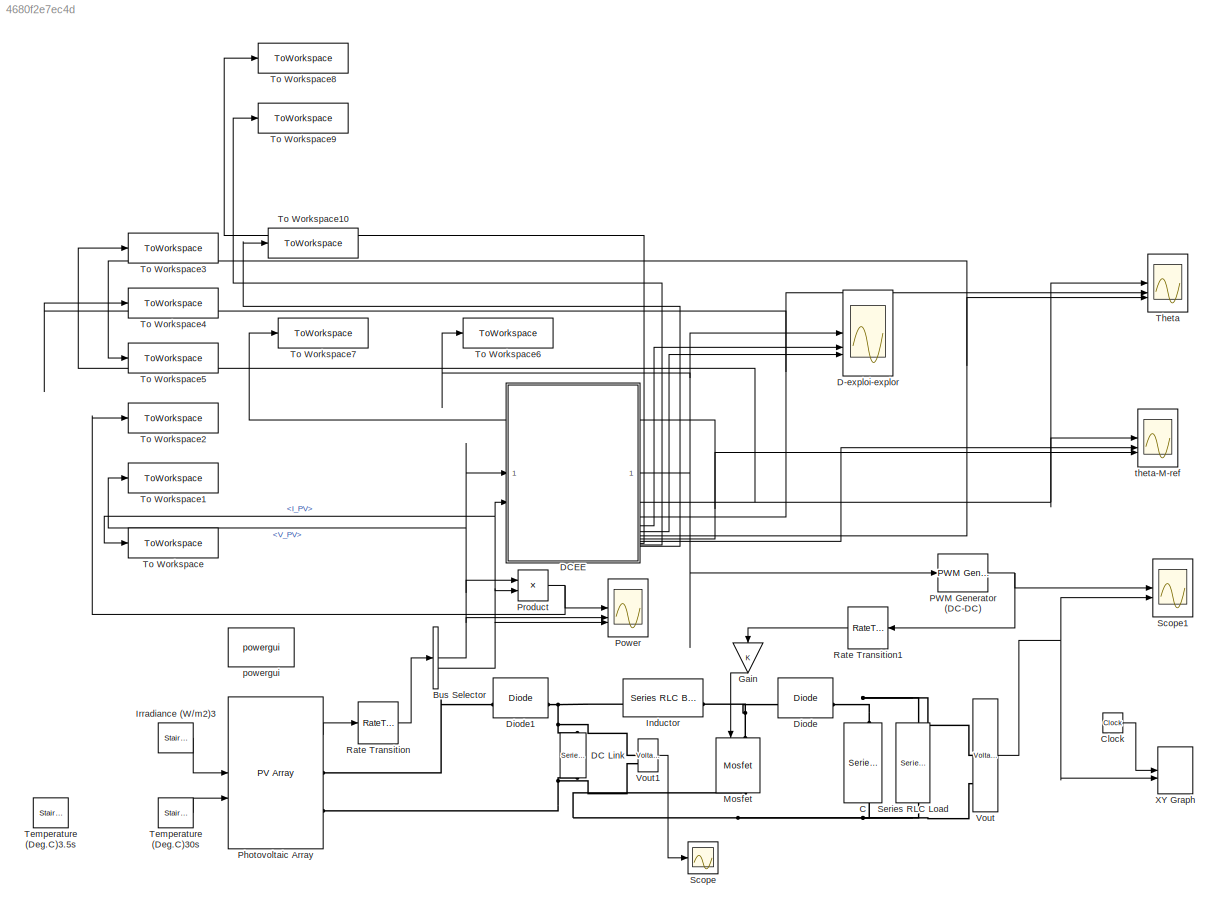
MODEL slx_4680f2e7ec4d
KIND model
CONFIG AbsTol = auto
CONFIG EnableMultiTasking = off
CONFIG FixedStep = 1e-6
CONFIG MaxStep = auto
CONFIG MinStep = auto
CONFIG RelTol = 1e-3
CONFIG SampleTimeConstraint = Unconstrained
CONFIG SolverName = FixedStepDiscrete
CONFIG StartTime = 0.0
CONFIG StopTime = 3.5
BLOCK [BusSelector] Bus Selector
  OutputSignals = V_PV,I_PV
BLOCK [Reference] C  REF=spsSeriesRLCBranchLib/Series RLC Branch
  LibrarySourceBlock = sps_lib/Passives/Series RLC Branch
  NameLocation = left
  SourceBlock = spsSeriesRLCBranchLib/Series RLC Branch
  SourceType = Series RLC Branch
BLOCK [Clock] Clock
  Decimation = 1
BLOCK [Scope] D-exploi-explor
  Floating = off
  NumInputPorts = 3
  ScopeSpecificationString = Simulink.scopes.TimeScopeBlockCfg('CurrentConfiguration', extmgr.ConfigurationSet(extmgr.Configuration('Core','General UI',true),extmgr.Configuration('Core','Source UI',true),extmgr.Configuration('Sources','WiredSimulink',true,'DataLoggingVariableName','ScopeData2'),extmgr.Configuration('Visuals','Time Domain',true,'InputProcessing','FrameProcessing','SerializedDisplays',{struct('MinYLimReal','-0....<+2835ch>
BLOCK [Reference] DC Link  REF=spsSeriesRLCBranchLib/Series RLC Branch
  AttributesFormatString = \n
  LibrarySourceBlock = sps_lib/Passives/Series RLC Branch
  NameLocation = left
  SourceBlock = spsSeriesRLCBranchLib/Series RLC Branch
  SourceType = Series RLC Branch
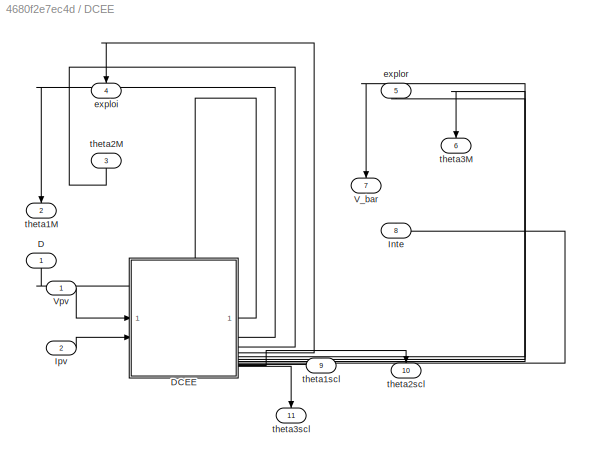
BLOCK [SubSystem] DCEE
BLOCK [Outport] DCEE/D
  NameLocation = right
  VectorParamsAs1DForOutWhenUnconnected = off
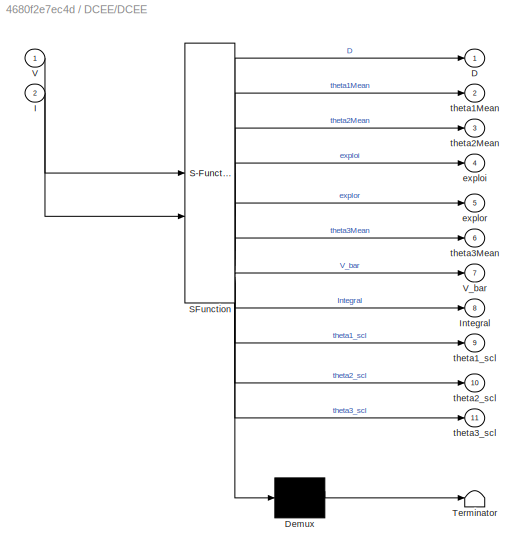
BLOCK [SubSystem] DCEE/DCEE
  ErrorFcn = Stateflow.Translate.translate
  PermitHierarchicalResolution = ExplicitOnly
  SFBlockType = MATLAB Function
  TreatAsAtomicUnit = on
BLOCK [Demux] DCEE/DCEE/ Demux 
  Outputs = 1
BLOCK [S-Function] DCEE/DCEE/ SFunction 
  EnableBusSupport = off
  FunctionName = sf_sfun
  PortCounts = [2 12]
  SFcnIsStateOwnerBlock = off
  SFunctionDeploymentMode = off
  Tag = Stateflow S-Function 2
BLOCK [Terminator] DCEE/DCEE/ Terminator 
BLOCK [Outport] DCEE/DCEE/D
  VectorParamsAs1DForOutWhenUnconnected = off
BLOCK [Inport] DCEE/DCEE/I
  Port = 2
BLOCK [Outport] DCEE/DCEE/Integral
  Port = 8
BLOCK [Inport] DCEE/DCEE/V
BLOCK [Outport] DCEE/DCEE/V_bar
  Port = 7
BLOCK [Outport] DCEE/DCEE/exploi
  Port = 4
BLOCK [Outport] DCEE/DCEE/explor
  Port = 5
BLOCK [Outport] DCEE/DCEE/theta1Mean
  Port = 2
BLOCK [Outport] DCEE/DCEE/theta1_scl
  Port = 9
BLOCK [Outport] DCEE/DCEE/theta2Mean
  Port = 3
BLOCK [Outport] DCEE/DCEE/theta2_scl
  Port = 10
BLOCK [Outport] DCEE/DCEE/theta3Mean
  Port = 6
BLOCK [Outport] DCEE/DCEE/theta3_scl
  Port = 11
BLOCK [Outport] DCEE/Inte
  NameLocation = right
  Port = 8
  VectorParamsAs1DForOutWhenUnconnected = off
BLOCK [Inport] DCEE/Ipv
  Port = 2
BLOCK [Outport] DCEE/V_bar
  NameLocation = right
  Port = 7
  VectorParamsAs1DForOutWhenUnconnected = off
BLOCK [Inport] DCEE/Vpv
BLOCK [Outport] DCEE/exploi
  NameLocation = right
  Port = 4
  VectorParamsAs1DForOutWhenUnconnected = off
BLOCK [Outport] DCEE/explor
  NameLocation = right
  Port = 5
  VectorParamsAs1DForOutWhenUnconnected = off
BLOCK [Outport] DCEE/theta1M
  NameLocation = right
  Port = 2
  VectorParamsAs1DForOutWhenUnconnected = off
BLOCK [Outport] DCEE/theta1scl
  NameLocation = right
  Port = 9
  VectorParamsAs1DForOutWhenUnconnected = off
BLOCK [Outport] DCEE/theta2M
  NameLocation = right
  Port = 3
  VectorParamsAs1DForOutWhenUnconnected = off
BLOCK [Outport] DCEE/theta2scl
  NameLocation = right
  Port = 10
  VectorParamsAs1DForOutWhenUnconnected = off
BLOCK [Outport] DCEE/theta3M
  NameLocation = right
  Port = 6
  VectorParamsAs1DForOutWhenUnconnected = off
BLOCK [Outport] DCEE/theta3scl
  NameLocation = right
  Port = 11
  VectorParamsAs1DForOutWhenUnconnected = off
BLOCK [Reference] Diode  REF=spsDiodeLib/Diode
  LibrarySourceBlock = sps_lib/Power Electronics/Diode
  SourceBlock = spsDiodeLib/Diode
  SourceType = Diode
BLOCK [Reference] Diode1  REF=spsDiodeLib/Diode
  LibrarySourceBlock = sps_lib/Power Electronics/Diode
  SourceBlock = spsDiodeLib/Diode
  SourceType = Diode
BLOCK [Gain] Gain
  NameLocation = left
  OutDataTypeStr = Inherit: Inherit via back propagation
BLOCK [Reference] Inductor  REF=spsSeriesRLCBranchLib/Series RLC Branch
  LibrarySourceBlock = sps_lib/Passives/Series RLC Branch
  SourceBlock = spsSeriesRLCBranchLib/Series RLC Branch
  SourceType = Series RLC Branch
BLOCK [Reference] Irradiance (W//m2)3  REF=spsStairGeneratorLib/Stair
Generator
  LibrarySourceBlock = sps_lib/Sources/Signal Generator Sources/Stair\nGenerator
  NameLocation = top
  SourceBlock = spsStairGeneratorLib/Stair\nGenerator
  SourceType = Stair Generator
BLOCK [Reference] Mosfet  REF=spsMosfetLib/Mosfet
  LibrarySourceBlock = sps_lib/Power Electronics/Mosfet
  NameLocation = left
  SourceBlock = spsMosfetLib/Mosfet
  SourceType = Mosfet
BLOCK [Reference] PWM Generator (DC-DC)  REF=spsPWMGeneratorDCDCLib/PWM Generator
(DC-DC)
  LibrarySourceBlock = sps_lib/Power Electronics/Power Electronics Control/PWM Generator\n(DC-DC)
  SourceBlock = spsPWMGeneratorDCDCLib/PWM Generator\n(DC-DC)
  SourceType = PWM Generator (DC-DC)
BLOCK [Reference] Photovoltaic Array  REF=spsPVArrayLib/PV Array
  AttributesFormatString = %<ModuleName>\n%<Nser>-module string\n%<Npar> parallel strings
  SourceBlock = spsPVArrayLib/PV Array
  SourceType = PV array
BLOCK [Scope] Power
  Floating = off
  NumInputPorts = 3
  ScopeSpecificationString = Simulink.scopes.TimeScopeBlockCfg('CurrentConfiguration', extmgr.ConfigurationSet(extmgr.Configuration('Core','General UI',true,'FigureColor',[0.156862745098039 0.156862745098039 0.156862745098039]),extmgr.Configuration('Core','Source UI',true),extmgr.Configuration('Sources','WiredSimulink',true,'DataLogging',true,'DataLoggingVariableName','pm','SampleTime','0','DataLoggingSaveFormat','StructureWi...<+2947ch>
BLOCK [Product] Product
  RndMeth = Zero
BLOCK [RateTransition] Rate Transition
  OutPortSampleTime = 1e-4
BLOCK [RateTransition] Rate Transition1
  OutPortSampleTime = 1e-6
BLOCK [Scope] Scope
  Floating = off
  NumInputPorts = 1
  ScopeSpecificationString = Simulink.scopes.TimeScopeBlockCfg('CurrentConfiguration', extmgr.ConfigurationSet(extmgr.Configuration('Core','General UI',true),extmgr.Configuration('Core','Source UI',true),extmgr.Configuration('Sources','WiredSimulink',true),extmgr.Configuration('Visuals','Time Domain',true,'SerializedDisplays',{struct('MinYLimReal','-4.43993','MaxYLimReal','39.9626','YLabelReal','','MinYLimMag','0.00000','MaxY...<+1379ch>
BLOCK [Scope] Scope1
  Floating = off
  NumInputPorts = 2
  ScopeSpecificationString = Simulink.scopes.TimeScopeBlockCfg('CurrentConfiguration', extmgr.ConfigurationSet(extmgr.Configuration('Core','General UI',true),extmgr.Configuration('Core','Source UI',true),extmgr.Configuration('Sources','WiredSimulink',true,'DataLoggingVariableName','ScopeData1','DataLoggingSaveFormat','Array','DataLoggingDecimation','1','DataLoggingDecimateData',true),extmgr.Configuration('Visuals','Time Domai...<+2318ch>
BLOCK [Reference] Series RLC Load  REF=spsSeriesRLCLoadLib/Series RLC Load
  AttributesFormatString = \n
  LibrarySourceBlock = sps_lib/Passives/Series RLC Load
  NameLocation = left
  SourceBlock = spsSeriesRLCLoadLib/Series RLC Load
  SourceType = Series RLC Load
BLOCK [Reference] Temperature (Deg.C)3.5s  REF=spsStairGeneratorLib/Stair
Generator
  LibrarySourceBlock = sps_lib/Sources/Signal Generator Sources/Stair\nGenerator
  NameLocation = top
  SourceBlock = spsStairGeneratorLib/Stair\nGenerator
  SourceType = Stair Generator
BLOCK [Reference] Temperature (Deg.C)30s  REF=spsStairGeneratorLib/Stair
Generator
  LibrarySourceBlock = sps_lib/Sources/Signal Generator Sources/Stair\nGenerator
  NameLocation = top
  SourceBlock = spsStairGeneratorLib/Stair\nGenerator
  SourceType = Stair Generator
BLOCK [Scope] Theta
  Floating = off
  NumInputPorts = 3
  ScopeSpecificationString = Simulink.scopes.TimeScopeBlockCfg('CurrentConfiguration', extmgr.ConfigurationSet(extmgr.Configuration('Core','General UI',true),extmgr.Configuration('Core','Source UI',true),extmgr.Configuration('Sources','WiredSimulink',true,'DataLoggingVariableName','ScopeData1','DataLoggingSaveFormat','Array','DataLoggingDecimation','1','DataLoggingDecimateData',true),extmgr.Configuration('Visuals','Time Domai...<+3590ch>
BLOCK [ToWorkspace] To Workspace
  FixptAsFi = on
  MaxDataPoints = inf
  SampleTime = -1
  SaveFormat = Timeseries
  VariableName = current_dcee
BLOCK [ToWorkspace] To Workspace1
  FixptAsFi = on
  MaxDataPoints = inf
  SampleTime = -1
  SaveFormat = Timeseries
  VariableName = voltage_dcee
BLOCK [ToWorkspace] To Workspace10
  FixptAsFi = on
  MaxDataPoints = inf
  SampleTime = -1
  SaveFormat = Timeseries
  VariableName = theta3scl_dcee
BLOCK [ToWorkspace] To Workspace2
  FixptAsFi = on
  MaxDataPoints = inf
  SampleTime = -1
  SaveFormat = Timeseries
  VariableName = power_dcee
BLOCK [ToWorkspace] To Workspace3
  FixptAsFi = on
  MaxDataPoints = inf
  SampleTime = -1
  SaveFormat = Timeseries
  VariableName = theta1_dcee
BLOCK [ToWorkspace] To Workspace4
  FixptAsFi = on
  MaxDataPoints = inf
  SampleTime = -1
  SaveFormat = Timeseries
  VariableName = theta2_dcee
BLOCK [ToWorkspace] To Workspace5
  FixptAsFi = on
  MaxDataPoints = inf
  SampleTime = -1
  SaveFormat = Timeseries
  VariableName = theta3_dcee
BLOCK [ToWorkspace] To Workspace6
  FixptAsFi = on
  MaxDataPoints = inf
  SampleTime = -1
  SaveFormat = Timeseries
  VariableName = D_dcee
BLOCK [ToWorkspace] To Workspace7
  FixptAsFi = on
  MaxDataPoints = inf
  SampleTime = -1
  SaveFormat = Timeseries
  VariableName = Vbar_dcee
BLOCK [ToWorkspace] To Workspace8
  FixptAsFi = on
  MaxDataPoints = inf
  SampleTime = -1
  SaveFormat = Timeseries
  VariableName = theta1scl_dcee
BLOCK [ToWorkspace] To Workspace9
  FixptAsFi = on
  MaxDataPoints = inf
  SampleTime = -1
  SaveFormat = Timeseries
  VariableName = theta2scl_dcee
BLOCK [Reference] Vout  REF=spsVoltageMeasurementLib/Voltage Measurement
  SourceBlock = spsVoltageMeasurementLib/Voltage Measurement
  SourceType = Voltage Measurement
  UserDataPersistent = on
BLOCK [Reference] Vout1  REF=spsVoltageMeasurementLib/Voltage Measurement
  SourceBlock = spsVoltageMeasurementLib/Voltage Measurement
  SourceType = Voltage Measurement
  UserDataPersistent = on
BLOCK [Record] XY Graph
  CompatibilityTag = XY
  FileSettingsInternal = {"entries":[{"content":{"excelSettings":{"content":{},"type":"Streamout.ExcelSettings"}},"type":"Streamout.FileSettingStorage","uuid":""}],"packageUris":["http:\/\/schema.mathworks.com\/mf0\/streamout_blocks\/R2020a"],"version":"1.0"}
  Layout = [1 1]
  SignalsInternal = {"entries":[{"content":{"signals":[{"content":{"blockPath":[],"dimensions":[1],"domain":"","lineColor":"#4dbeee","port":1,"signalID":1,"signalName":"Clock"},"type":"RecordBlkView.Signal","uuid":""},{"content":{"blockPath":[],"dimensions":[1],"domain":"","lineColor":"#a2142f","port":2,"signalID":2,"signalName":"Vout"},"type":"RecordBlkView.Signal","uuid":""}]},"type":"RecordBlkView.InputSignals","u...<+105ch>
  VisualizationBindings = {"xyplotplugin":{"info":[{"series":[],"subplotID":1}]}}
  st = 0.0001
BLOCK [Reference] powergui  REF=spspowerguiLib/powergui
  Priority = 1
  SourceBlock = spspowerguiLib/powergui
  SourceType = PSB option menu block
BLOCK [Scope] theta-M-ref
  Floating = off
  NumInputPorts = 3
  ScopeSpecificationString = Simulink.scopes.TimeScopeBlockCfg('CurrentConfiguration', extmgr.ConfigurationSet(extmgr.Configuration('Core','General UI',true),extmgr.Configuration('Core','Source UI',true),extmgr.Configuration('Sources','WiredSimulink',true,'DataLoggingVariableName','ScopeData1','DataLoggingSaveFormat','Array','DataLoggingDecimation','1','DataLoggingDecimateData',true),extmgr.Configuration('Visuals','Time Domai...<+3045ch>
NET Bus Selector:1 -> DCEE:1, Power:2, Product:1, To Workspace1:1
NET Bus Selector:2 -> DCEE:2, Power:3, Product:2, To Workspace:1
LINE Clock:1 -> XY Graph:1
LINE DCEE/DCEE:1 -> DCEE/D:1
LINE DCEE/DCEE:10 -> DCEE/theta2scl:1
LINE DCEE/DCEE:11 -> DCEE/theta3scl:1
LINE DCEE/DCEE:2 -> DCEE/theta1M:1
LINE DCEE/DCEE:3 -> DCEE/theta2M:1
LINE DCEE/DCEE:4 -> DCEE/exploi:1
LINE DCEE/DCEE:5 -> DCEE/explor:1
LINE DCEE/DCEE:6 -> DCEE/theta3M:1
LINE DCEE/DCEE:7 -> DCEE/V_bar:1
LINE DCEE/DCEE:8 -> DCEE/Inte:1
LINE DCEE/DCEE:9 -> DCEE/theta1scl:1
LINE DCEE/Ipv:1 -> DCEE/DCEE:2
LINE DCEE/Vpv:1 -> DCEE/DCEE:1
NET DCEE:1 -> D-exploi-explor:1, PWM Generator (DC-DC):1, To Workspace6:1
LINE DCEE:10 -> To Workspace9:1
LINE DCEE:11 -> To Workspace10:1
NET DCEE:2 -> Theta:1, To Workspace3:1, theta-M-ref:1
NET DCEE:3 -> Theta:2, To Workspace4:1
LINE DCEE:4 -> D-exploi-explor:2
LINE DCEE:5 -> D-exploi-explor:3
NET DCEE:6 -> Theta:3, To Workspace5:1
NET DCEE:7 -> To Workspace7:1, theta-M-ref:3
LINE DCEE:8 -> theta-M-ref:2
LINE DCEE:9 -> To Workspace8:1
LINE Gain:1 -> Mosfet:1
LINE Irradiance (W//m2)3:1 -> Photovoltaic Array:1
NET PWM Generator (DC-DC):1 -> Rate Transition1:1, Scope1:1
LINE Photovoltaic Array:1 -> Rate Transition:1
NET Product:1 -> Power:1, To Workspace2:1
LINE Rate Transition1:1 -> Gain:1
LINE Rate Transition:1 -> Bus Selector:1
LINE Temperature (Deg.C)30s:1 -> Photovoltaic Array:2
LINE Vout1:1 -> Scope:1
NET Vout:1 -> Scope1:2, XY Graph:2
PNET net1: C:LConn1 -- Diode:RConn1 -- Series RLC Load:LConn1 -- Vout:LConn1
PNET net2: C:RConn1 -- DC Link:RConn1 -- Mosfet:RConn1 -- Photovoltaic Array:RConn2 -- Series RLC Load:RConn1 -- Vout1:LConn2 -- Vout:LConn2
PNET net3: DC Link:LConn1 -- Diode1:RConn1 -- Inductor:LConn1 -- Vout1:LConn1
PLINE Diode1:LConn1 -- Photovoltaic Array:RConn1
PNET net4: Diode:LConn1 -- Inductor:RConn1 -- Mosfet:LConn1
note: NET lines group one-source signal fan-out (src -> all destinations, sorted); 1:1 wires keep LINE; PNET lines group multi-terminal physical nets as a canonical sorted terminal list (undirected conserving connections); 2-terminal nets keep the pairwise PLINE form
CHART DCEE/DCEE states=1 transitions=1
  STATE_LABEL 'eML_blk_kernel()'
  STATE_LABEL 'SCRIPT:\n                               \nfunction [D, theta1Mean, theta2Mean, exploi, explor, theta3Mean, V_bar, Integral, ...\n          theta1_scl, theta2_scl, theta3_scl] = DCEE(V, I)\n    \n    % Dinit = 0.01;  \n    Dmax = 1 ;\n    Dmin = 0.001;\n    \n    thetamin1 = 0.01;\n    thetamax1 = 1;\n    thetamin2 = 9;\n    thetamax2 = 12;\n    thetamin3 = 24;\n    thetamax3 = 26; \n\n    D = 0; \n    N = 2;\n    %...<+3608ch>'
CHART  states=0 transitions=0
